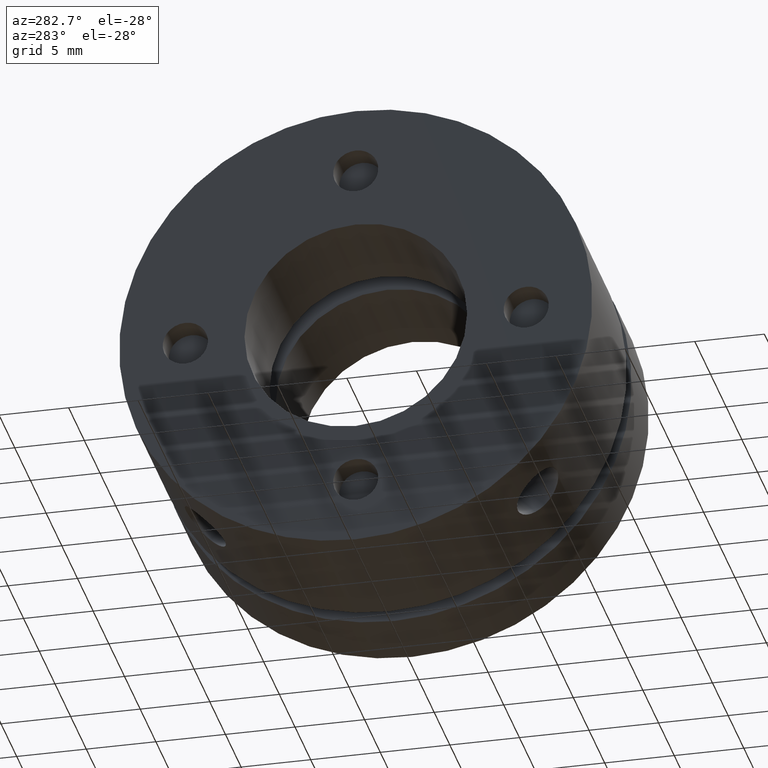
[diagram: clean part render]
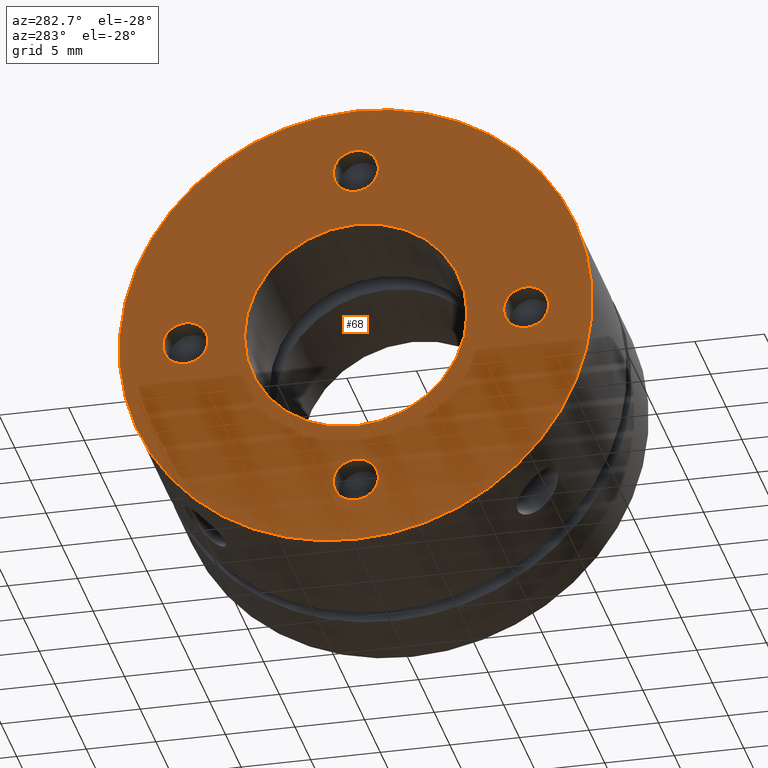
[diagram: same view with one face highlighted and labeled with its STEP entity id]
A machine part, auxiliary view. The second image highlights one B-rep face of the part: STEP entity #68.
In plain terms, the highlighted planar face has unit normal (-1, 0, 0).
Its self-contained STEP definition (entity closure, byte-faithful):
#68 = ADVANCED_FACE ( 'NONE', ( #241, #249, #252, #247, #253, #251 ), #2938, .T. ) ;
#127 = ORIENTED_EDGE ( 'NONE', *, *, #1284, .T. ) ;
#241 = FACE_BOUND ( 'NONE', #2653, .T. ) ;
#247 = FACE_BOUND ( 'NONE', #2624, .T. ) ;
#249 = FACE_BOUND ( 'NONE', #2649, .T. ) ;
#251 = FACE_OUTER_BOUND ( 'NONE', #2654, .T. ) ;
#252 = FACE_BOUND ( 'NONE', #2651, .T. ) ;
#253 = FACE_BOUND ( 'NONE', #2650, .T. ) ;
#382 = CIRCLE ( 'NONE', #568, 17.00000000000000000 ) ;
#449 = AXIS2_PLACEMENT_3D ( 'NONE', #1869, #1870, #1871 ) ;
#456 = AXIS2_PLACEMENT_3D ( 'NONE', #1866, #1867, #1868 ) ;
#461 = AXIS2_PLACEMENT_3D ( 'NONE', #1863, #1864, #1865 ) ;
#483 = AXIS2_PLACEMENT_3D ( 'NONE', #3417, #3418, #3419 ) ;
#533 = AXIS2_PLACEMENT_3D ( 'NONE', #3289, #3290, #3291 ) ;
#561 = AXIS2_PLACEMENT_3D ( 'NONE', #1872, #1873, #1874 ) ;
#562 = AXIS2_PLACEMENT_3D ( 'NONE', #1876, #1877, #1878 ) ;
#568 = AXIS2_PLACEMENT_3D ( 'NONE', #3128, #3129, #3130 ) ;
#663 = AXIS2_PLACEMENT_3D ( 'NONE', #3442, #3443, #3444 ) ;
#665 = AXIS2_PLACEMENT_3D ( 'NONE', #3464, #3465, #3466 ) ;
#667 = AXIS2_PLACEMENT_3D ( 'NONE', #3452, #3453, #3454 ) ;
#696 = AXIS2_PLACEMENT_3D ( 'NONE', #3432, #3433, #3434 ) ;
#718 = AXIS2_PLACEMENT_3D ( 'NONE', #2940, #2936, #2942 ) ;
#763 = EDGE_CURVE ( 'NONE', #2684, #2764, #382, .T. ) ;
#780 = CIRCLE ( 'NONE', #533, 17.00000000000000000 ) ;
#787 = CIRCLE ( 'NONE', #483, 8.000000000000003600 ) ;
#795 = CIRCLE ( 'NONE', #696, 1.620999999999999100 ) ;
#801 = CIRCLE ( 'NONE', #663, 1.621000000000000000 ) ;
#807 = CIRCLE ( 'NONE', #667, 1.620999999999999100 ) ;
#813 = CIRCLE ( 'NONE', #665, 1.621000000000000000 ) ;
#1018 = CIRCLE ( 'NONE', #461, 1.621000000000000000 ) ;
#1019 = CIRCLE ( 'NONE', #456, 1.620999999999999100 ) ;
#1020 = CIRCLE ( 'NONE', #449, 1.621000000000000000 ) ;
#1021 = CIRCLE ( 'NONE', #561, 1.620999999999999100 ) ;
#1022 = CIRCLE ( 'NONE', #562, 8.000000000000003600 ) ;
#1208 = ORIENTED_EDGE ( 'NONE', *, *, #1451, .T. ) ;
#1276 = EDGE_CURVE ( 'NONE', #2764, #2684, #780, .T. ) ;
#1284 = EDGE_CURVE ( 'NONE', #2688, #2741, #787, .T. ) ;
#1290 = EDGE_CURVE ( 'NONE', #2660, #2791, #795, .T. ) ;
#1294 = EDGE_CURVE ( 'NONE', #2772, #2712, #801, .T. ) ;
#1298 = EDGE_CURVE ( 'NONE', #2672, #2778, #807, .T. ) ;
#1302 = EDGE_CURVE ( 'NONE', #2738, #2734, #813, .T. ) ;
#1449 = EDGE_CURVE ( 'NONE', #2734, #2738, #1018, .T. ) ;
#1450 = EDGE_CURVE ( 'NONE', #2778, #2672, #1019, .T. ) ;
#1451 = EDGE_CURVE ( 'NONE', #2712, #2772, #1020, .T. ) ;
#1452 = EDGE_CURVE ( 'NONE', #2791, #2660, #1021, .T. ) ;
#1453 = EDGE_CURVE ( 'NONE', #2741, #2688, #1022, .T. ) ;
#1475 = ORIENTED_EDGE ( 'NONE', *, *, #1298, .T. ) ;
#1477 = ORIENTED_EDGE ( 'NONE', *, *, #763, .F. ) ;
#1479 = ORIENTED_EDGE ( 'NONE', *, *, #1276, .F. ) ;
#1484 = ORIENTED_EDGE ( 'NONE', *, *, #1294, .T. ) ;
#1863 = CARTESIAN_POINT ( 'NONE',  ( -2.602085213965210600E-015, 12.25000000000000500, -2.250288000000000100E-015 ) ) ;
#1864 = DIRECTION ( 'NONE',  ( 1.000000000000000000, -0.0000000000000000000, -0.0000000000000000000 ) ) ;
#1865 = DIRECTION ( 'NONE',  ( 0.0000000000000000000, 0.0000000000000000000, 1.000000000000000000 ) ) ;
#1866 = CARTESIAN_POINT ( 'NONE',  ( -2.602085213965210600E-015, -1.500192000000000300E-015, -12.25000000000000500 ) ) ;
#1867 = DIRECTION ( 'NONE',  ( 1.000000000000000000, -0.0000000000000000000, -0.0000000000000000000 ) ) ;
#1868 = DIRECTION ( 'NONE',  ( 0.0000000000000000000, 0.0000000000000000000, 1.000000000000000000 ) ) ;
#1869 = CARTESIAN_POINT ( 'NONE',  ( -2.602085213965210600E-015, -12.25000000000000500, 7.500961999999999900E-016 ) ) ;
#1870 = DIRECTION ( 'NONE',  ( 1.000000000000000000, -0.0000000000000000000, -0.0000000000000000000 ) ) ;
#1871 = DIRECTION ( 'NONE',  ( 0.0000000000000000000, 0.0000000000000000000, 1.000000000000000000 ) ) ;
#1872 = CARTESIAN_POINT ( 'NONE',  ( -2.602085213965210600E-015, 0.0000000000000000000, 12.25000000000000500 ) ) ;
#1873 = DIRECTION ( 'NONE',  ( 1.000000000000000000, -0.0000000000000000000, -0.0000000000000000000 ) ) ;
#1874 = DIRECTION ( 'NONE',  ( 0.0000000000000000000, 0.0000000000000000000, 1.000000000000000000 ) ) ;
#1876 = CARTESIAN_POINT ( 'NONE',  ( -1.734723475976807100E-015, 0.0000000000000000000, 0.0000000000000000000 ) ) ;
#1877 = DIRECTION ( 'NONE',  ( 1.000000000000000000, 0.0000000000000000000, 0.0000000000000000000 ) ) ;
#1878 = DIRECTION ( 'NONE',  ( 0.0000000000000000000, 0.0000000000000000000, -1.000000000000000000 ) ) ;
#1946 = CARTESIAN_POINT ( 'NONE',  ( -2.602085213965210600E-015, 0.0000000000000000000, 13.87100000000000400 ) ) ;
#1955 = CARTESIAN_POINT ( 'NONE',  ( -2.602085213965210600E-015, -1.500192000000000300E-015, -10.62900000000000700 ) ) ;
#1967 = CARTESIAN_POINT ( 'NONE',  ( -5.204170427930421300E-015, 2.081899558550500300E-015, 17.00000000000000000 ) ) ;
#1971 = CARTESIAN_POINT ( 'NONE',  ( -1.734723475976807100E-015, 9.797174393178831600E-016, 8.000000000000003600 ) ) ;
#1995 = CARTESIAN_POINT ( 'NONE',  ( -2.602085213965210600E-015, -12.25000000000000500, -1.620999999999999300 ) ) ;
#2017 = CARTESIAN_POINT ( 'NONE',  ( -2.602085213965210600E-015, 12.25000000000000500, -1.621000000000002200 ) ) ;
#2021 = CARTESIAN_POINT ( 'NONE',  ( -2.602085213965210600E-015, 12.25000000000000500, 1.620999999999997800 ) ) ;
#2024 = CARTESIAN_POINT ( 'NONE',  ( -1.734723475976807100E-015, 0.0000000000000000000, -8.000000000000003600 ) ) ;
#2047 = CARTESIAN_POINT ( 'NONE',  ( -5.204170427930421300E-015, 0.0000000000000000000, -17.00000000000000000 ) ) ;
#2055 = CARTESIAN_POINT ( 'NONE',  ( -2.602085213965210600E-015, -12.25000000000000500, 1.621000000000000700 ) ) ;
#2061 = CARTESIAN_POINT ( 'NONE',  ( -2.602085213965210600E-015, -1.301676753858214200E-015, -13.87100000000000400 ) ) ;
#2074 = CARTESIAN_POINT ( 'NONE',  ( -2.602085213965210600E-015, 1.985152461417860500E-016, 10.62900000000000700 ) ) ;
#2221 = ORIENTED_EDGE ( 'NONE', *, *, #1302, .T. ) ;
#2273 = ORIENTED_EDGE ( 'NONE', *, *, #1449, .T. ) ;
#2361 = ORIENTED_EDGE ( 'NONE', *, *, #1452, .T. ) ;
#2376 = ORIENTED_EDGE ( 'NONE', *, *, #1450, .T. ) ;
#2377 = ORIENTED_EDGE ( 'NONE', *, *, #1290, .T. ) ;
#2378 = ORIENTED_EDGE ( 'NONE', *, *, #1453, .T. ) ;
#2624 = EDGE_LOOP ( 'NONE', ( #1475, #2376 ) ) ;
#2649 = EDGE_LOOP ( 'NONE', ( #2377, #2361 ) ) ;
#2650 = EDGE_LOOP ( 'NONE', ( #2221, #2273 ) ) ;
#2651 = EDGE_LOOP ( 'NONE', ( #1484, #1208 ) ) ;
#2653 = EDGE_LOOP ( 'NONE', ( #2378, #127 ) ) ;
#2654 = EDGE_LOOP ( 'NONE', ( #1479, #1477 ) ) ;
#2660 = VERTEX_POINT ( 'NONE', #1946 ) ;
#2672 = VERTEX_POINT ( 'NONE', #1955 ) ;
#2684 = VERTEX_POINT ( 'NONE', #1967 ) ;
#2688 = VERTEX_POINT ( 'NONE', #1971 ) ;
#2712 = VERTEX_POINT ( 'NONE', #1995 ) ;
#2734 = VERTEX_POINT ( 'NONE', #2017 ) ;
#2738 = VERTEX_POINT ( 'NONE', #2021 ) ;
#2741 = VERTEX_POINT ( 'NONE', #2024 ) ;
#2764 = VERTEX_POINT ( 'NONE', #2047 ) ;
#2772 = VERTEX_POINT ( 'NONE', #2055 ) ;
#2778 = VERTEX_POINT ( 'NONE', #2061 ) ;
#2791 = VERTEX_POINT ( 'NONE', #2074 ) ;
#2936 = DIRECTION ( 'NONE',  ( -1.000000000000000000, 0.0000000000000000000, 0.0000000000000000000 ) ) ;
#2938 = PLANE ( 'NONE',  #718 ) ;
#2940 = CARTESIAN_POINT ( 'NONE',  ( -2.998266999999999900E-015, 12.49999999999999600, 0.0000000000000000000 ) ) ;
#2942 = DIRECTION ( 'NONE',  ( 0.0000000000000000000, 0.0000000000000000000, 1.000000000000000000 ) ) ;
#3128 = CARTESIAN_POINT ( 'NONE',  ( -5.204170427930421300E-015, 0.0000000000000000000, 0.0000000000000000000 ) ) ;
#3129 = DIRECTION ( 'NONE',  ( 1.000000000000000000, 0.0000000000000000000, 0.0000000000000000000 ) ) ;
#3130 = DIRECTION ( 'NONE',  ( 0.0000000000000000000, 0.0000000000000000000, -1.000000000000000000 ) ) ;
#3289 = CARTESIAN_POINT ( 'NONE',  ( -5.204170427930421300E-015, 0.0000000000000000000, 0.0000000000000000000 ) ) ;
#3290 = DIRECTION ( 'NONE',  ( 1.000000000000000000, 0.0000000000000000000, 0.0000000000000000000 ) ) ;
#3291 = DIRECTION ( 'NONE',  ( 0.0000000000000000000, 0.0000000000000000000, -1.000000000000000000 ) ) ;
#3417 = CARTESIAN_POINT ( 'NONE',  ( -1.734723475976807100E-015, 0.0000000000000000000, 0.0000000000000000000 ) ) ;
#3418 = DIRECTION ( 'NONE',  ( 1.000000000000000000, 0.0000000000000000000, 0.0000000000000000000 ) ) ;
#3419 = DIRECTION ( 'NONE',  ( 0.0000000000000000000, 0.0000000000000000000, -1.000000000000000000 ) ) ;
#3432 = CARTESIAN_POINT ( 'NONE',  ( -2.602085213965210600E-015, 0.0000000000000000000, 12.25000000000000500 ) ) ;
#3433 = DIRECTION ( 'NONE',  ( 1.000000000000000000, -0.0000000000000000000, -0.0000000000000000000 ) ) ;
#3434 = DIRECTION ( 'NONE',  ( 0.0000000000000000000, 0.0000000000000000000, 1.000000000000000000 ) ) ;
#3442 = CARTESIAN_POINT ( 'NONE',  ( -2.602085213965210600E-015, -12.25000000000000500, 7.500961999999999900E-016 ) ) ;
#3443 = DIRECTION ( 'NONE',  ( 1.000000000000000000, -0.0000000000000000000, -0.0000000000000000000 ) ) ;
#3444 = DIRECTION ( 'NONE',  ( 0.0000000000000000000, 0.0000000000000000000, 1.000000000000000000 ) ) ;
#3452 = CARTESIAN_POINT ( 'NONE',  ( -2.602085213965210600E-015, -1.500192000000000300E-015, -12.25000000000000500 ) ) ;
#3453 = DIRECTION ( 'NONE',  ( 1.000000000000000000, -0.0000000000000000000, -0.0000000000000000000 ) ) ;
#3454 = DIRECTION ( 'NONE',  ( 0.0000000000000000000, 0.0000000000000000000, 1.000000000000000000 ) ) ;
#3464 = CARTESIAN_POINT ( 'NONE',  ( -2.602085213965210600E-015, 12.25000000000000500, -2.250288000000000100E-015 ) ) ;
#3465 = DIRECTION ( 'NONE',  ( 1.000000000000000000, -0.0000000000000000000, -0.0000000000000000000 ) ) ;
#3466 = DIRECTION ( 'NONE',  ( 0.0000000000000000000, 0.0000000000000000000, 1.000000000000000000 ) ) ;